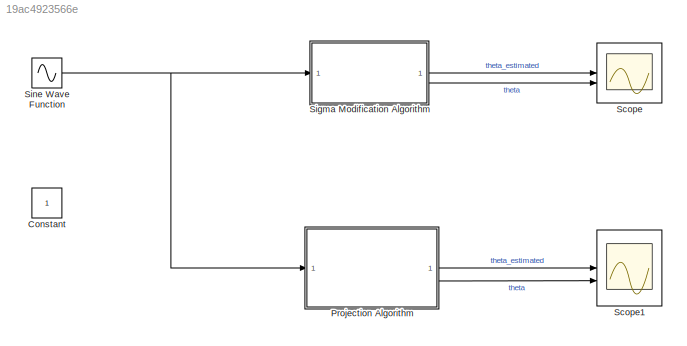
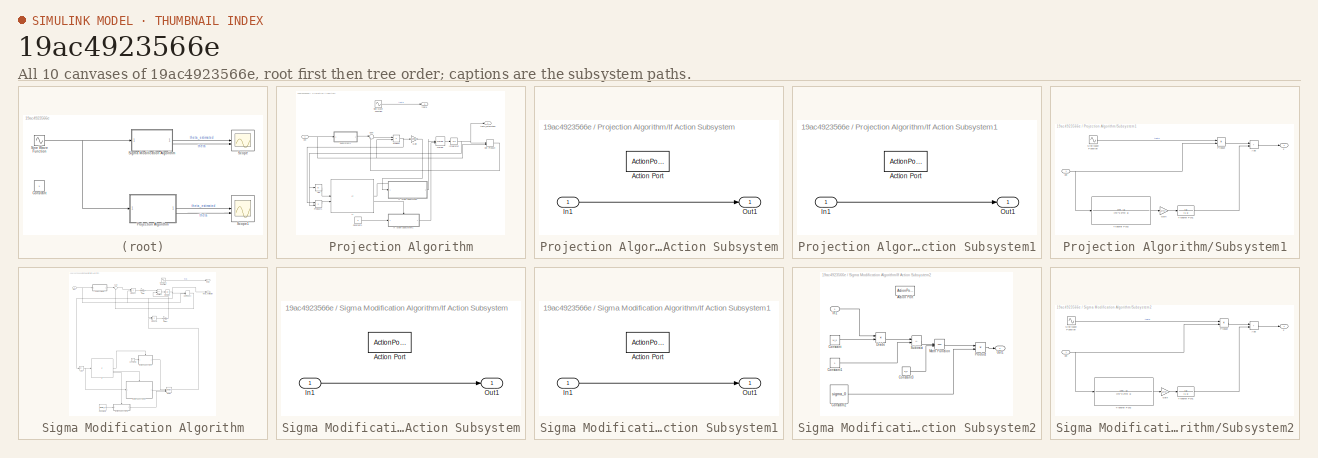
[diagram: thumbnail index - all 10 canvases of the model, root first then tree order]
MODEL slx_19ac4923566e
KIND model
CONFIG AbsTol = auto
CONFIG EnableMultiTasking = off
CONFIG FixedStep = auto
CONFIG MaxStep = auto
CONFIG MinStep = auto
CONFIG RelTol = 1e-3
CONFIG SampleTimeConstraint = Unconstrained
CONFIG SolverName = VariableStepAuto
CONFIG StartTime = 0.0
CONFIG StopTime = 100
BLOCK [Constant] Constant
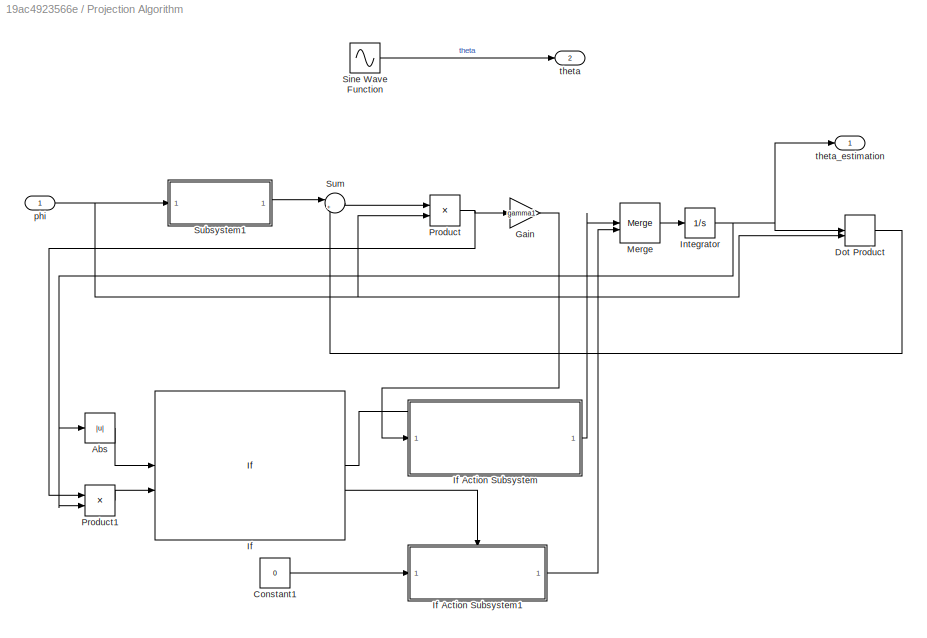
BLOCK [SubSystem] Projection Algorithm
BLOCK [Abs] Projection Algorithm/Abs
  SaturateOnIntegerOverflow = off
BLOCK [Constant] Projection Algorithm/Constant1
  Value = 0
BLOCK [DotProduct] Projection Algorithm/Dot Product
  OutDataTypeStr = Inherit: Inherit via internal rule
BLOCK [Gain] Projection Algorithm/Gain
  Gain = gamma1
BLOCK [If] Projection Algorithm/If
  IfExpression = (u1 < M_0) | (u1 == M_0 & u2 <= 0)
  NumInputs = 2
BLOCK [SubSystem] Projection Algorithm/If Action Subsystem
  TreatAsAtomicUnit = on
BLOCK [ActionPort] Projection Algorithm/If Action Subsystem/Action Port
  ActionPortLabel = if((u1 < M_0) | (u1 == M_0 & u2 <= 0))
BLOCK [Inport] Projection Algorithm/If Action Subsystem/In1
BLOCK [Outport] Projection Algorithm/If Action Subsystem/Out1
BLOCK [SubSystem] Projection Algorithm/If Action Subsystem1
  TreatAsAtomicUnit = on
BLOCK [ActionPort] Projection Algorithm/If Action Subsystem1/Action Port
  ActionPortLabel = else
BLOCK [Inport] Projection Algorithm/If Action Subsystem1/In1
BLOCK [Outport] Projection Algorithm/If Action Subsystem1/Out1
BLOCK [Integrator] Projection Algorithm/Integrator
BLOCK [Merge] Projection Algorithm/Merge
BLOCK [Product] Projection Algorithm/Product
BLOCK [Product] Projection Algorithm/Product1
BLOCK [Sin] Projection Algorithm/Sine Wave Function
  Bias = 5
  Frequency = 0.1
  SampleTime = 0
BLOCK [SubSystem] Projection Algorithm/Subsystem1
BLOCK [Sum] Projection Algorithm/Subsystem1/Add
  IconShape = rectangular
BLOCK [Gain] Projection Algorithm/Subsystem1/Gain
  Gain = 10*mi
BLOCK [Product] Projection Algorithm/Subsystem1/Product
BLOCK [Sin] Projection Algorithm/Subsystem1/Sine Wave Function
  Bias = 5
  Frequency = 0.1
  SampleTime = 0
BLOCK [TransferFcn] Projection Algorithm/Subsystem1/Transfer Fcn1
  Denominator = [1 1]
BLOCK [TransferFcn] Projection Algorithm/Subsystem1/Transfer Fcn2
  Denominator = [mi^2 2*mi 1]
  Numerator = [mi  -1]
BLOCK [Inport] Projection Algorithm/Subsystem1/phi
BLOCK [Outport] Projection Algorithm/Subsystem1/z
BLOCK [Sum] Projection Algorithm/Sum
  Inputs = |+-
BLOCK [Inport] Projection Algorithm/phi
BLOCK [Outport] Projection Algorithm/theta
  Port = 2
BLOCK [Outport] Projection Algorithm/theta_estimation
BLOCK [Scope] Scope
  Floating = off
  NumInputPorts = 2
  ScopeSpecificationString = Simulink.scopes.TimeScopeBlockCfg('CurrentConfiguration', extmgr.ConfigurationSet(extmgr.Configuration('Core','General UI',true),extmgr.Configuration('Core','Source UI',true),extmgr.Configuration('Sources','WiredSimulink',true),extmgr.Configuration('Visuals','Time Domain',true,'SerializedDisplays',{struct('MinYLimReal','-0.75','MaxYLimReal','6.75','YLabelReal','','MinYLimMag','0.00000','MaxYLimMag...<+1361ch>
BLOCK [Scope] Scope1
  Floating = off
  NumInputPorts = 2
  ScopeSpecificationString = Simulink.scopes.TimeScopeBlockCfg('CurrentConfiguration', extmgr.ConfigurationSet(extmgr.Configuration('Core','General UI',true),extmgr.Configuration('Core','Source UI',true),extmgr.Configuration('Sources','WiredSimulink',true,'DataLoggingVariableName','ScopeData1'),extmgr.Configuration('Visuals','Time Domain',true,'SerializedDisplays',{struct('MinYLimReal','-1.03538','MaxYLimReal','6.75','YLabelR...<+1509ch>
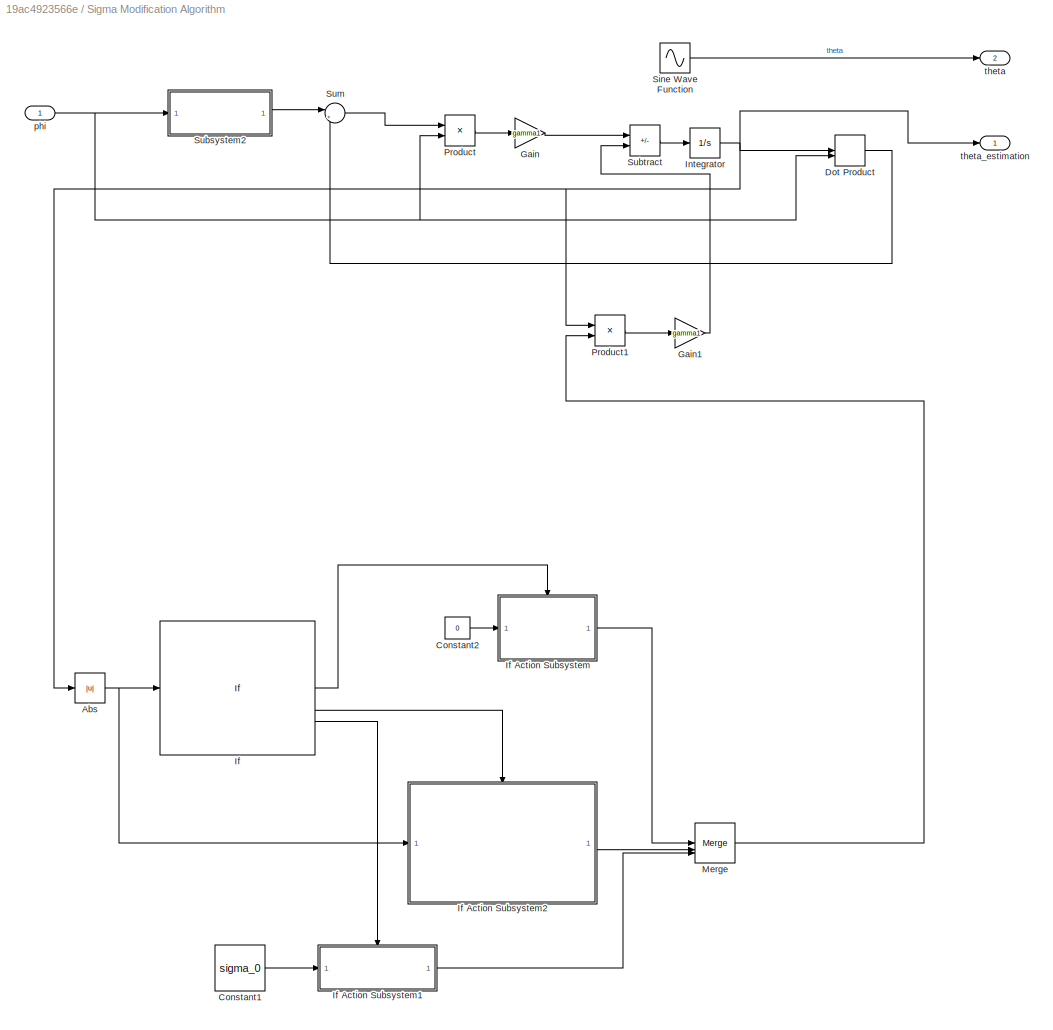
BLOCK [SubSystem] Sigma Modification Algorithm
BLOCK [Abs] Sigma Modification Algorithm/Abs
  SaturateOnIntegerOverflow = off
BLOCK [Constant] Sigma Modification Algorithm/Constant1
  Value = sigma_0
BLOCK [Constant] Sigma Modification Algorithm/Constant2
  Value = 0
BLOCK [DotProduct] Sigma Modification Algorithm/Dot Product
  OutDataTypeStr = Inherit: Inherit via internal rule
BLOCK [Gain] Sigma Modification Algorithm/Gain
  Gain = gamma1
BLOCK [Gain] Sigma Modification Algorithm/Gain1
  Gain = gamma1
BLOCK [If] Sigma Modification Algorithm/If
  ElseIfExpressions = u1 > 6 & u1 <= 12
  IfExpression = u1 <= 6
BLOCK [SubSystem] Sigma Modification Algorithm/If Action Subsystem
  TreatAsAtomicUnit = on
BLOCK [ActionPort] Sigma Modification Algorithm/If Action Subsystem/Action Port
  ActionPortLabel = if(u1 <= 6)
BLOCK [Inport] Sigma Modification Algorithm/If Action Subsystem/In1
BLOCK [Outport] Sigma Modification Algorithm/If Action Subsystem/Out1
BLOCK [SubSystem] Sigma Modification Algorithm/If Action Subsystem1
  TreatAsAtomicUnit = on
BLOCK [ActionPort] Sigma Modification Algorithm/If Action Subsystem1/Action Port
  ActionPortLabel = else
BLOCK [Inport] Sigma Modification Algorithm/If Action Subsystem1/In1
BLOCK [Outport] Sigma Modification Algorithm/If Action Subsystem1/Out1
BLOCK [SubSystem] Sigma Modification Algorithm/If Action Subsystem2
  TreatAsAtomicUnit = on
BLOCK [ActionPort] Sigma Modification Algorithm/If Action Subsystem2/Action Port
  ActionPortLabel = elseif(u1 > 6 & u1 <= 12)
BLOCK [Constant] Sigma Modification Algorithm/If Action Subsystem2/Constant
  Value = M_0
BLOCK [Constant] Sigma Modification Algorithm/If Action Subsystem2/Constant1
BLOCK [Constant] Sigma Modification Algorithm/If Action Subsystem2/Constant2
  Value = sigma_0
BLOCK [Constant] Sigma Modification Algorithm/If Action Subsystem2/Constant3
  Value = q_0
BLOCK [Product] Sigma Modification Algorithm/If Action Subsystem2/Divide
  Inputs = */
BLOCK [Inport] Sigma Modification Algorithm/If Action Subsystem2/In1
BLOCK [Math] Sigma Modification Algorithm/If Action Subsystem2/Math Function
  Operator = pow
  OutputSignalType = real
BLOCK [Outport] Sigma Modification Algorithm/If Action Subsystem2/Out1
BLOCK [Product] Sigma Modification Algorithm/If Action Subsystem2/Product
BLOCK [Sum] Sigma Modification Algorithm/If Action Subsystem2/Subtract
  IconShape = rectangular
  Inputs = +-
BLOCK [Integrator] Sigma Modification Algorithm/Integrator
BLOCK [Merge] Sigma Modification Algorithm/Merge
  Inputs = 3
BLOCK [Product] Sigma Modification Algorithm/Product
BLOCK [Product] Sigma Modification Algorithm/Product1
BLOCK [Sin] Sigma Modification Algorithm/Sine Wave Function
  Bias = 5
  Frequency = 0.1
  SampleTime = 0
BLOCK [SubSystem] Sigma Modification Algorithm/Subsystem2
BLOCK [Sum] Sigma Modification Algorithm/Subsystem2/Add
  IconShape = rectangular
BLOCK [Gain] Sigma Modification Algorithm/Subsystem2/Gain
  Gain = 10*mi
BLOCK [Product] Sigma Modification Algorithm/Subsystem2/Product
BLOCK [Sin] Sigma Modification Algorithm/Subsystem2/Sine Wave Function
  Bias = 5
  Frequency = 0.1
  SampleTime = 0
BLOCK [TransferFcn] Sigma Modification Algorithm/Subsystem2/Transfer Fcn1
  Denominator = [1 1]
BLOCK [TransferFcn] Sigma Modification Algorithm/Subsystem2/Transfer Fcn2
  Denominator = [mi^2 2*mi 1]
  Numerator = [mi  -1]
BLOCK [Inport] Sigma Modification Algorithm/Subsystem2/phi
BLOCK [Outport] Sigma Modification Algorithm/Subsystem2/z
BLOCK [Sum] Sigma Modification Algorithm/Subtract
  IconShape = rectangular
  Inputs = +-
BLOCK [Sum] Sigma Modification Algorithm/Sum
  Inputs = |+-
BLOCK [Inport] Sigma Modification Algorithm/phi
BLOCK [Outport] Sigma Modification Algorithm/theta
  Port = 2
BLOCK [Outport] Sigma Modification Algorithm/theta_estimation
BLOCK [Sin] Sine Wave Function
  SampleTime = 0
  VectorParams1D = off
LINE Projection Algorithm/Abs:1 -> Projection Algorithm/If:1
LINE Projection Algorithm/Constant1:1 -> Projection Algorithm/If Action Subsystem1:1
LINE Projection Algorithm/Dot Product:1 -> Projection Algorithm/Sum:2
LINE Projection Algorithm/Gain:1 -> Projection Algorithm/If Action Subsystem:1
LINE Projection Algorithm/If Action Subsystem/In1:1 -> Projection Algorithm/If Action Subsystem/Out1:1
LINE Projection Algorithm/If Action Subsystem1/In1:1 -> Projection Algorithm/If Action Subsystem1/Out1:1
LINE Projection Algorithm/If Action Subsystem1:1 -> Projection Algorithm/Merge:2
LINE Projection Algorithm/If Action Subsystem:1 -> Projection Algorithm/Merge:1
LINE Projection Algorithm/If:1 -> Projection Algorithm/If Action Subsystem:ifaction
LINE Projection Algorithm/If:2 -> Projection Algorithm/If Action Subsystem1:ifaction
NET Projection Algorithm/Integrator:1 -> Projection Algorithm/Abs:1, Projection Algorithm/Dot Product:1, Projection Algorithm/Product1:2, Projection Algorithm/theta_estimation:1
LINE Projection Algorithm/Merge:1 -> Projection Algorithm/Integrator:1
LINE Projection Algorithm/Product1:1 -> Projection Algorithm/If:2
NET Projection Algorithm/Product:1 -> Projection Algorithm/Gain:1, Projection Algorithm/Product1:1
LINE Projection Algorithm/Sine Wave Function:1 -> Projection Algorithm/theta:1
LINE Projection Algorithm/Subsystem1/Add:1 -> Projection Algorithm/Subsystem1/z:1
LINE Projection Algorithm/Subsystem1/Gain:1 -> Projection Algorithm/Subsystem1/Transfer Fcn1:1
LINE Projection Algorithm/Subsystem1/Product:1 -> Projection Algorithm/Subsystem1/Add:1
LINE Projection Algorithm/Subsystem1/Sine Wave Function:1 -> Projection Algorithm/Subsystem1/Product:1
LINE Projection Algorithm/Subsystem1/Transfer Fcn1:1 -> Projection Algorithm/Subsystem1/Add:2
LINE Projection Algorithm/Subsystem1/Transfer Fcn2:1 -> Projection Algorithm/Subsystem1/Gain:1
NET Projection Algorithm/Subsystem1/phi:1 -> Projection Algorithm/Subsystem1/Product:2, Projection Algorithm/Subsystem1/Transfer Fcn2:1
LINE Projection Algorithm/Subsystem1:1 -> Projection Algorithm/Sum:1
LINE Projection Algorithm/Sum:1 -> Projection Algorithm/Product:1
NET Projection Algorithm/phi:1 -> Projection Algorithm/Dot Product:2, Projection Algorithm/Product:2, Projection Algorithm/Subsystem1:1
LINE Projection Algorithm:1 -> Scope1:1
LINE Projection Algorithm:2 -> Scope1:2
NET Sigma Modification Algorithm/Abs:1 -> Sigma Modification Algorithm/If Action Subsystem2:1, Sigma Modification Algorithm/If:1
LINE Sigma Modification Algorithm/Constant1:1 -> Sigma Modification Algorithm/If Action Subsystem1:1
LINE Sigma Modification Algorithm/Constant2:1 -> Sigma Modification Algorithm/If Action Subsystem:1
LINE Sigma Modification Algorithm/Dot Product:1 -> Sigma Modification Algorithm/Sum:2
LINE Sigma Modification Algorithm/Gain1:1 -> Sigma Modification Algorithm/Subtract:2
LINE Sigma Modification Algorithm/Gain:1 -> Sigma Modification Algorithm/Subtract:1
LINE Sigma Modification Algorithm/If Action Subsystem/In1:1 -> Sigma Modification Algorithm/If Action Subsystem/Out1:1
LINE Sigma Modification Algorithm/If Action Subsystem1/In1:1 -> Sigma Modification Algorithm/If Action Subsystem1/Out1:1
LINE Sigma Modification Algorithm/If Action Subsystem1:1 -> Sigma Modification Algorithm/Merge:3
LINE Sigma Modification Algorithm/If Action Subsystem2/Constant1:1 -> Sigma Modification Algorithm/If Action Subsystem2/Subtract:2
LINE Sigma Modification Algorithm/If Action Subsystem2/Constant2:1 -> Sigma Modification Algorithm/If Action Subsystem2/Product:2
LINE Sigma Modification Algorithm/If Action Subsystem2/Constant3:1 -> Sigma Modification Algorithm/If Action Subsystem2/Math Function:2
LINE Sigma Modification Algorithm/If Action Subsystem2/Constant:1 -> Sigma Modification Algorithm/If Action Subsystem2/Divide:2
LINE Sigma Modification Algorithm/If Action Subsystem2/Divide:1 -> Sigma Modification Algorithm/If Action Subsystem2/Subtract:1
LINE Sigma Modification Algorithm/If Action Subsystem2/In1:1 -> Sigma Modification Algorithm/If Action Subsystem2/Divide:1
LINE Sigma Modification Algorithm/If Action Subsystem2/Math Function:1 -> Sigma Modification Algorithm/If Action Subsystem2/Product:1
LINE Sigma Modification Algorithm/If Action Subsystem2/Product:1 -> Sigma Modification Algorithm/If Action Subsystem2/Out1:1
LINE Sigma Modification Algorithm/If Action Subsystem2/Subtract:1 -> Sigma Modification Algorithm/If Action Subsystem2/Math Function:1
LINE Sigma Modification Algorithm/If Action Subsystem2:1 -> Sigma Modification Algorithm/Merge:2
LINE Sigma Modification Algorithm/If Action Subsystem:1 -> Sigma Modification Algorithm/Merge:1
LINE Sigma Modification Algorithm/If:1 -> Sigma Modification Algorithm/If Action Subsystem:ifaction
LINE Sigma Modification Algorithm/If:2 -> Sigma Modification Algorithm/If Action Subsystem2:ifaction
LINE Sigma Modification Algorithm/If:3 -> Sigma Modification Algorithm/If Action Subsystem1:ifaction
NET Sigma Modification Algorithm/Integrator:1 -> Sigma Modification Algorithm/Abs:1, Sigma Modification Algorithm/Dot Product:1, Sigma Modification Algorithm/Product1:1, Sigma Modification Algorithm/theta_estimation:1
LINE Sigma Modification Algorithm/Merge:1 -> Sigma Modification Algorithm/Product1:2
LINE Sigma Modification Algorithm/Product1:1 -> Sigma Modification Algorithm/Gain1:1
LINE Sigma Modification Algorithm/Product:1 -> Sigma Modification Algorithm/Gain:1
LINE Sigma Modification Algorithm/Sine Wave Function:1 -> Sigma Modification Algorithm/theta:1
LINE Sigma Modification Algorithm/Subsystem2/Add:1 -> Sigma Modification Algorithm/Subsystem2/z:1
LINE Sigma Modification Algorithm/Subsystem2/Gain:1 -> Sigma Modification Algorithm/Subsystem2/Transfer Fcn1:1
LINE Sigma Modification Algorithm/Subsystem2/Product:1 -> Sigma Modification Algorithm/Subsystem2/Add:1
LINE Sigma Modification Algorithm/Subsystem2/Sine Wave Function:1 -> Sigma Modification Algorithm/Subsystem2/Product:1
LINE Sigma Modification Algorithm/Subsystem2/Transfer Fcn1:1 -> Sigma Modification Algorithm/Subsystem2/Add:2
LINE Sigma Modification Algorithm/Subsystem2/Transfer Fcn2:1 -> Sigma Modification Algorithm/Subsystem2/Gain:1
NET Sigma Modification Algorithm/Subsystem2/phi:1 -> Sigma Modification Algorithm/Subsystem2/Product:2, Sigma Modification Algorithm/Subsystem2/Transfer Fcn2:1
LINE Sigma Modification Algorithm/Subsystem2:1 -> Sigma Modification Algorithm/Sum:1
LINE Sigma Modification Algorithm/Subtract:1 -> Sigma Modification Algorithm/Integrator:1
LINE Sigma Modification Algorithm/Sum:1 -> Sigma Modification Algorithm/Product:1
NET Sigma Modification Algorithm/phi:1 -> Sigma Modification Algorithm/Dot Product:2, Sigma Modification Algorithm/Product:2, Sigma Modification Algorithm/Subsystem2:1
LINE Sigma Modification Algorithm:1 -> Scope:1
LINE Sigma Modification Algorithm:2 -> Scope:2
NET Sine Wave Function:1 -> Projection Algorithm:1, Sigma Modification Algorithm:1
note: NET lines group one-source signal fan-out (src -> all destinations, sorted); 1:1 wires keep LINE
